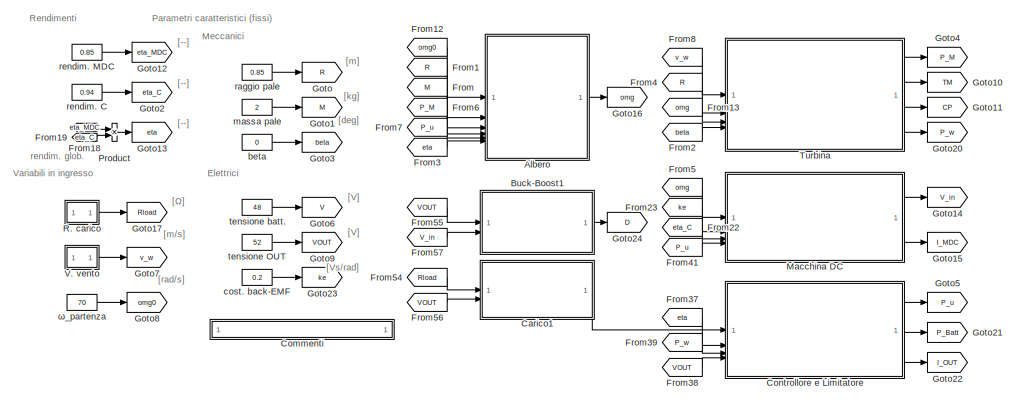
[diagram: root canvas - part 1/2, full width, top band]
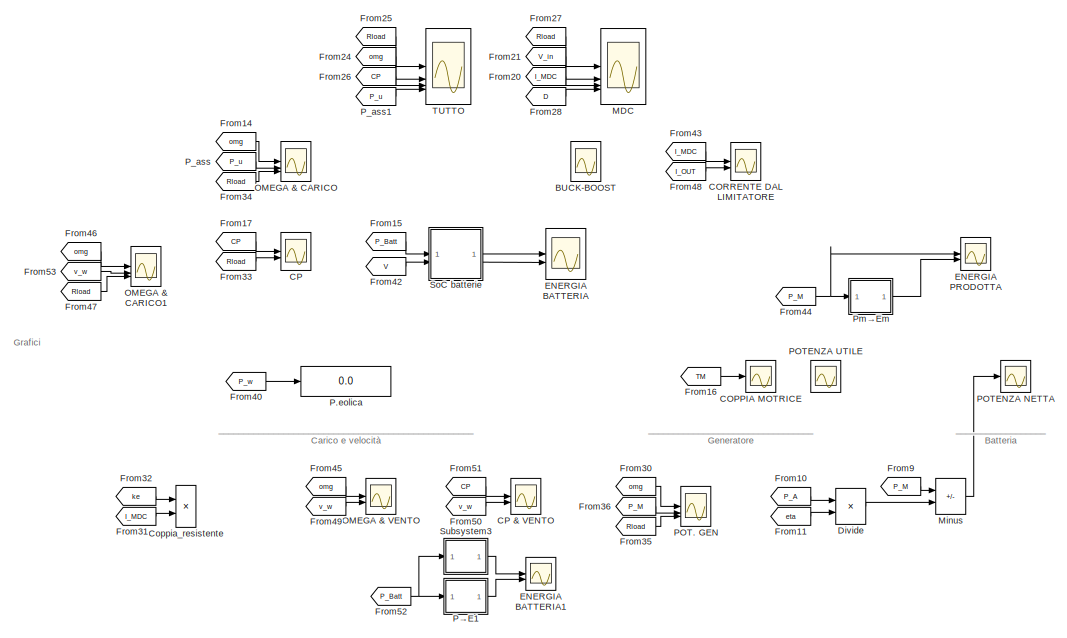
[diagram: root canvas - part 2/2, full width, bottom band]
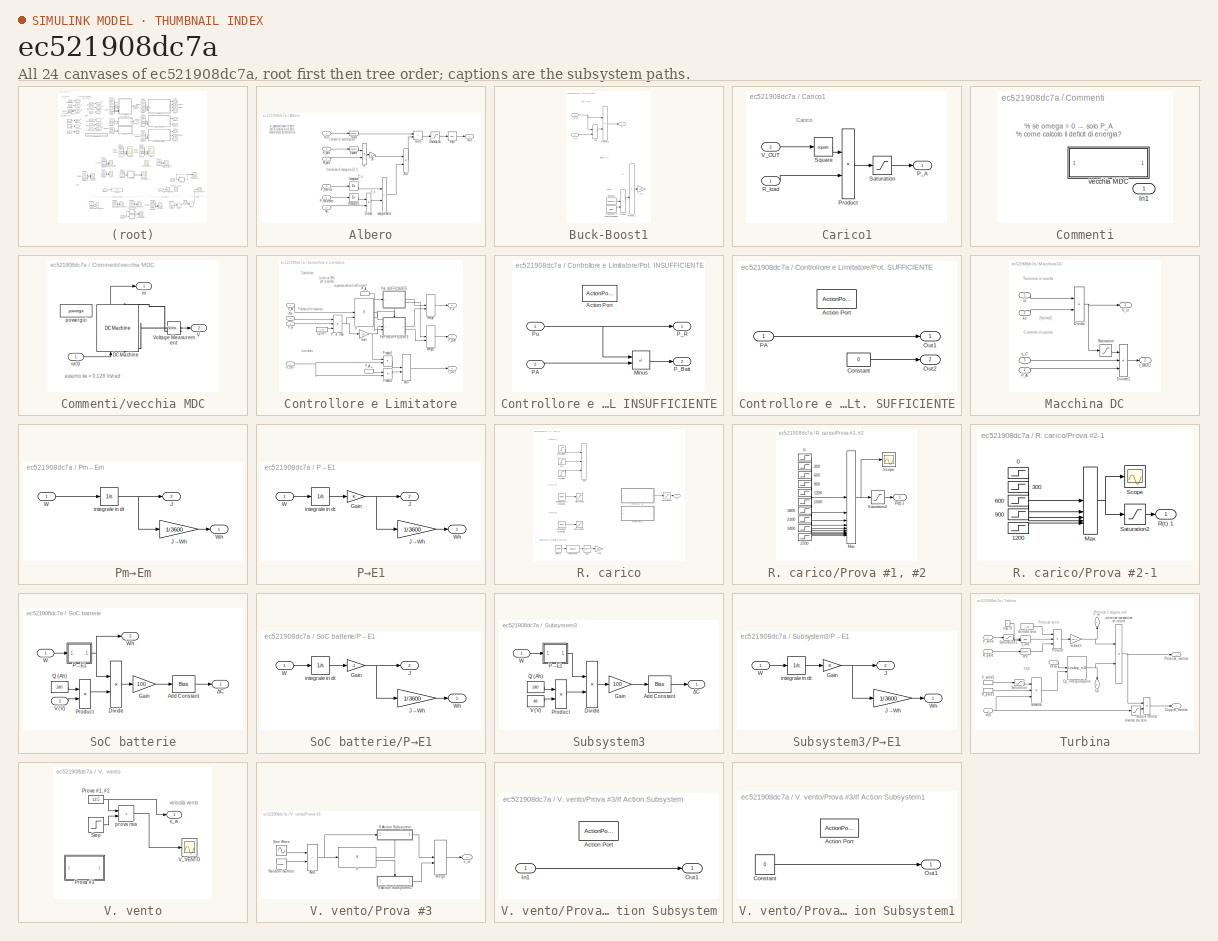
[diagram: thumbnail index - all 24 canvases of the model, root first then tree order]
MODEL slx_ec521908dc7a
KIND model
CONFIG AbsTol = auto
CONFIG EnableMultiTasking = off
CONFIG FixedStep = auto
CONFIG MaxStep = auto
CONFIG MinStep = auto
CONFIG RelTol = 1e-3
CONFIG SampleTimeConstraint = Unconstrained
CONFIG SolverName = VariableStepAuto
CONFIG StartTime = 0.0
CONFIG StopTime = 3000
BLOCK [SubSystem] Albero
  NameLocation = top
BLOCK [Gain] Albero/2K
  Gain = 2
BLOCK [Product] Albero/Divide
  Inputs = */
BLOCK [Integrator] Albero/Integrator
BLOCK [Integrator] Albero/Integrator1
BLOCK [Product] Albero/K
  Inputs = //
  NameLocation = left
BLOCK [Inport] Albero/M_pale
  Port = 3
  Unit = kg
BLOCK [Inport] Albero/P_motrice
  Port = 4
  Unit = W
BLOCK [Inport] Albero/P_resistente
  Port = 5
  Unit = W
BLOCK [Inport] Albero/R_pale
  Port = 2
  Unit = m
BLOCK [Saturate] Albero/Saturation
  LowerLimit = 0
  UpperLimit = 10e6
BLOCK [Sqrt] Albero/Sqrt
BLOCK [Math] Albero/Square
  Operator = square
BLOCK [Sum] Albero/energia netta
  IconShape = rectangular
  Inputs = +-
BLOCK [Product] Albero/Δω²
BLOCK [Inport] Albero/ηG
  Port = 6
  Unit = 1
BLOCK [Outport] Albero/ω(t)
  Unit = rad/s
BLOCK [Inport] Albero/ω_0
  Unit = rad/s
BLOCK [Math] Albero/ω²(0)
  NameLocation = top
  Operator = square
BLOCK [Sum] Albero/ω²(t)
  IconShape = rectangular
BLOCK [Scope] BUCK-BOOST
  Floating = off
  NumInputPorts = 2
  ScopeSpecificationString = Simulink.scopes.TimeScopeBlockCfg('CurrentConfiguration', extmgr.ConfigurationSet(extmgr.Configuration('Core','General UI',true,'FigureColor',[1 1 1]),extmgr.Configuration('Core','Source UI',true),extmgr.Configuration('Sources','WiredSimulink',true,'DataLoggingVariableName','ScopeData3'),extmgr.Configuration('Visuals','Time Domain',true,'SerializedDisplays',{struct('MinYLimReal','0.35','MaxYLimRea...<+2573ch>
BLOCK [SubSystem] Buck-Boost1
  NameLocation = top
BLOCK [Sum] Buck-Boost1/Add
  IconShape = rectangular
BLOCK [Constant] Buck-Boost1/Capacità
  NameLocation = left
  Value = 8*10e-6
BLOCK [Outport] Buck-Boost1/D
  NameLocation = right
  Unit = 1
BLOCK [Constant] Buck-Boost1/Frequenza di commutazione
  NameLocation = left
  Value = 10e5
BLOCK [Product] Buck-Boost1/Product
  Commented = on
  Inputs = 3
BLOCK [Product] Buck-Boost1/Product1
  Commented = on
  Inputs = */
BLOCK [Product] Buck-Boost1/Product2
  Inputs = */
BLOCK [Inport] Buck-Boost1/V_IN
  NameLocation = left
  Port = 2
  Unit = V
BLOCK [Inport] Buck-Boost1/V_OUT
  NameLocation = left
  Unit = V
BLOCK [Gain] Buck-Boost1/in_%
  Commented = on
  Gain = 100
BLOCK [Scope] COPPIA MOTRICE
  Commented = on
  Floating = off
  NumInputPorts = 1
  ScopeSpecificationString = Simulink.scopes.TimeScopeBlockCfg('CurrentConfiguration', extmgr.ConfigurationSet(extmgr.Configuration('Core','General UI',true,'FigureColor',[1 1 1]),extmgr.Configuration('Core','Source UI',true),extmgr.Configuration('Sources','WiredSimulink',true,'DataLoggingVariableName','ScopeData3'),extmgr.Configuration('Visuals','Time Domain',true,'SerializedDisplays',{struct('MinYLimReal','-1.22036','MaxYLi...<+1816ch>
BLOCK [Scope] CORRENTE DAL LIMITATORE
  Floating = off
  NumInputPorts = 2
  ScopeSpecificationString = Simulink.scopes.TimeScopeBlockCfg('CurrentConfiguration', extmgr.ConfigurationSet(extmgr.Configuration('Core','General UI',true,'FigureColor',[1 1 1]),extmgr.Configuration('Core','Source UI',true),extmgr.Configuration('Sources','WiredSimulink',true,'DataLoggingVariableName','ScopeData1'),extmgr.Configuration('Visuals','Time Domain',true,'SerializedDisplays',{struct('MinYLimReal','0','MaxYLimReal',...<+4124ch>
BLOCK [Scope] CP
  Floating = off
  NumInputPorts = 2
  ScopeSpecificationString = Simulink.scopes.TimeScopeBlockCfg('CurrentConfiguration', extmgr.ConfigurationSet(extmgr.Configuration('Core','General UI',true,'FigureColor',[1 1 1]),extmgr.Configuration('Core','Source UI',true),extmgr.Configuration('Sources','WiredSimulink',true,'DataLoggingVariableName','ScopeData1'),extmgr.Configuration('Visuals','Time Domain',true,'TimeAxisLabels','All','SerializedDisplays',{struct('MinYLimR...<+2416ch>
BLOCK [Scope] CP & VENTO
  Floating = off
  NumInputPorts = 2
  ScopeSpecificationString = Simulink.scopes.TimeScopeBlockCfg('CurrentConfiguration', extmgr.ConfigurationSet(extmgr.Configuration('Core','General UI',true,'FigureColor',[1 1 1]),extmgr.Configuration('Core','Source UI',true),extmgr.Configuration('Sources','WiredSimulink',true,'DataLoggingVariableName','ScopeData4'),extmgr.Configuration('Visuals','Time Domain',true,'TimeAxisLabels','All','SerializedDisplays',{struct('MinYLimR...<+2351ch>
BLOCK [SubSystem] Carico1
BLOCK [Outport] Carico1/P_A
  NameLocation = right
  Unit = W
BLOCK [Product] Carico1/Product
  Inputs = */
BLOCK [Inport] Carico1/R_load
  NameLocation = left
  Unit = Ω
BLOCK [Saturate] Carico1/Saturation
  LowerLimit = 0.1
  UpperLimit = 10e6
BLOCK [Math] Carico1/Square
  Operator = square
BLOCK [Inport] Carico1/V_OUT
  NameLocation = left
  Port = 2
  Unit = V
BLOCK [SubSystem] Commenti
  PortSchema = {"entries":[{"content":{"sides":[{"content":{},"type":"ConnectorPlacement.EquallySpacedRectSide","uuid":"3b05cc76-4a60-484a-afaf-f6205dfe48c2"},{"content":{"connectorIds":["In1"],"side":"RIGHT"},"type":"ConnectorPlacement.EquallySpacedRectSide","uuid":"79372650-1144-4712-8b87-4c94ae1f72cb"},{"content":{"side":"TOP"},"type":"ConnectorPlacement.EquallySpacedRectSide","uuid":"9da3426b-e973-4751-81ca-...<+325ch>
BLOCK [Inport] Commenti/In1
BLOCK [SubSystem] Commenti/vecchia MDC
  Commented = on
BLOCK [Reference] Commenti/vecchia MDC/DC Machine  REF=spsDCMachineLib/DC Machine
  LibrarySourceBlock = sps_lib/Electrical Machines/DC Machine
  NameLocation = left
  SourceBlock = spsDCMachineLib/DC Machine
  SourceType = DC machine
BLOCK [Outport] Commenti/vecchia MDC/V
  Port = 2
  Unit = V
BLOCK [Reference] Commenti/vecchia MDC/Voltage Measurement  REF=spsVoltageMeasurementLib/Voltage Measurement
  LibrarySourceBlock = sps_lib/Sensors and Measurements/Voltage Measurement
  SourceBlock = spsVoltageMeasurementLib/Voltage Measurement
  SourceType = Voltage Measurement
  UserDataPersistent = on
BLOCK [Outport] Commenti/vecchia MDC/m
BLOCK [Reference] Commenti/vecchia MDC/powergui  REF=sps_lib/powergui
  LibrarySourceBlock = sps_lib/powergui
  Priority = 1
  SourceBlock = sps_lib/powergui
  SourceType = PSB option menu block
BLOCK [Inport] Commenti/vecchia MDC/ω(t)
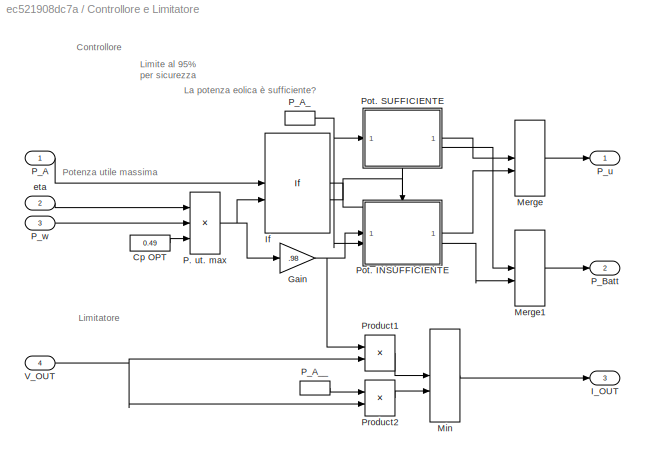
BLOCK [SubSystem] Controllore e Limitatore
BLOCK [Constant] Controllore e Limitatore/Cp OPT
  Value = 0.49
BLOCK [Gain] Controllore e Limitatore/Gain
  Gain = .98
BLOCK [Outport] Controllore e Limitatore/I_OUT
  NameLocation = right
  Port = 3
  Unit = A
BLOCK [If] Controllore e Limitatore/If
  IfExpression = u1<u2
  NumInputs = 2
BLOCK [Merge] Controllore e Limitatore/Merge
BLOCK [Merge] Controllore e Limitatore/Merge1
BLOCK [MinMax] Controllore e Limitatore/Min
  Inputs = 2
BLOCK [Product] Controllore e Limitatore/P. ut. max
  Inputs = 3
BLOCK [Inport] Controllore e Limitatore/P_A
  NameLocation = left
BLOCK [InportShadow] Controllore e Limitatore/P_A_
  NameLocation = left
BLOCK [InportShadow] Controllore e Limitatore/P_A__
  NameLocation = left
BLOCK [Outport] Controllore e Limitatore/P_Batt
  NameLocation = right
  Port = 2
  Unit = W
BLOCK [Outport] Controllore e Limitatore/P_u
  NameLocation = right
BLOCK [Inport] Controllore e Limitatore/P_w
  NameLocation = left
  Port = 3
BLOCK [SubSystem] Controllore e Limitatore/Pot. INSUFFICIENTE
  TreatAsAtomicUnit = on
BLOCK [ActionPort] Controllore e Limitatore/Pot. INSUFFICIENTE/Action Port
  ActionPortLabel = else
BLOCK [Sum] Controllore e Limitatore/Pot. INSUFFICIENTE/Minus
  IconShape = rectangular
  Inputs = -+
BLOCK [Inport] Controllore e Limitatore/Pot. INSUFFICIENTE/PA
  Port = 2
BLOCK [Outport] Controllore e Limitatore/Pot. INSUFFICIENTE/P_Batt
  Port = 2
  Unit = W
BLOCK [Outport] Controllore e Limitatore/Pot. INSUFFICIENTE/P_R
BLOCK [Inport] Controllore e Limitatore/Pot. INSUFFICIENTE/Pu
BLOCK [SubSystem] Controllore e Limitatore/Pot. SUFFICIENTE
  NameLocation = top
  TreatAsAtomicUnit = on
BLOCK [ActionPort] Controllore e Limitatore/Pot. SUFFICIENTE/Action Port
  ActionPortLabel = if(u1<u2)
BLOCK [Constant] Controllore e Limitatore/Pot. SUFFICIENTE/Constant
  Value = 0
BLOCK [Outport] Controllore e Limitatore/Pot. SUFFICIENTE/Out1
BLOCK [Outport] Controllore e Limitatore/Pot. SUFFICIENTE/Out2
  Port = 2
  Unit = W
BLOCK [Inport] Controllore e Limitatore/Pot. SUFFICIENTE/PA
BLOCK [Product] Controllore e Limitatore/Product1
  Inputs = */
  NameLocation = top
BLOCK [Product] Controllore e Limitatore/Product2
  Inputs = */
  NameLocation = top
BLOCK [Inport] Controllore e Limitatore/V_OUT
  NameLocation = left
  Port = 4
BLOCK [Inport] Controllore e Limitatore/eta
  NameLocation = left
  Port = 2
BLOCK [Product] Coppia_resistente
  Commented = on
BLOCK [Product] Divide
  Commented = on
  Inputs = */
BLOCK [Scope] ENERGIA BATTERIA
  Floating = off
  NumInputPorts = 2
  ScopeSpecificationString = Simulink.scopes.TimeScopeBlockCfg('CurrentConfiguration', extmgr.ConfigurationSet(extmgr.Configuration('Core','General UI',true,'FigureColor',[1 1 1]),extmgr.Configuration('Core','Source UI',true),extmgr.Configuration('Sources','WiredSimulink',true,'DataLoggingVariableName','ScopeData4'),extmgr.Configuration('Visuals','Time Domain',true,'SerializedDisplays',{struct('MinYLimReal','97.74906','MaxYLi...<+4142ch>
BLOCK [Scope] ENERGIA BATTERIA1
  Floating = off
  NumInputPorts = 2
  ScopeSpecificationString = Simulink.scopes.TimeScopeBlockCfg('CurrentConfiguration', extmgr.ConfigurationSet(extmgr.Configuration('Core','General UI',true,'FigureColor',[1 1 1]),extmgr.Configuration('Core','Source UI',true),extmgr.Configuration('Sources','WiredSimulink',true,'DataLoggingVariableName','ScopeData5'),extmgr.Configuration('Visuals','Time Domain',true,'SerializedDisplays',{struct('MinYLimReal','48','MaxYLimReal'...<+2360ch>
BLOCK [Scope] ENERGIA PRODOTTA
  Floating = off
  NumInputPorts = 2
  ScopeSpecificationString = Simulink.scopes.TimeScopeBlockCfg('CurrentConfiguration', extmgr.ConfigurationSet(extmgr.Configuration('Core','General UI',true,'FigureColor',[1 1 1]),extmgr.Configuration('Core','Source UI',true),extmgr.Configuration('Sources','WiredSimulink',true,'DataLoggingVariableName','ScopeData2'),extmgr.Configuration('Visuals','Time Domain',true,'SerializedDisplays',{struct('MinYLimReal','-50','MaxYLimReal...<+1907ch>
BLOCK [From] From
  GotoTag = M
BLOCK [From] From1
  GotoTag = R
BLOCK [From] From10
  Commented = on
  GotoTag = P_A
BLOCK [From] From11
  Commented = on
  GotoTag = eta
BLOCK [From] From12
  GotoTag = omg0
BLOCK [From] From13
  GotoTag = omg
BLOCK [From] From14
  GotoTag = omg
  NameLocation = left
BLOCK [From] From15
  GotoTag = P_Batt
BLOCK [From] From16
  Commented = on
  GotoTag = TM
BLOCK [From] From17
  GotoTag = CP
BLOCK [From] From18
  GotoTag = eta_MDC
BLOCK [From] From19
  GotoTag = eta_C
BLOCK [From] From2
  GotoTag = beta
BLOCK [From] From20
  GotoTag = I_MDC
  NameLocation = left
BLOCK [From] From21
  GotoTag = V_in
BLOCK [From] From22
  GotoTag = eta_C
BLOCK [From] From23
  GotoTag = ke
BLOCK [From] From24
  GotoTag = omg
  NameLocation = left
BLOCK [From] From25
  GotoTag = Rload
BLOCK [From] From26
  GotoTag = CP
BLOCK [From] From27
  GotoTag = Rload
BLOCK [From] From28
  GotoTag = D
BLOCK [From] From3
  GotoTag = eta
BLOCK [From] From30
  Commented = on
  GotoTag = omg
  NameLocation = left
BLOCK [From] From31
  Commented = on
  GotoTag = I_MDC
BLOCK [From] From32
  Commented = on
  GotoTag = ke
BLOCK [From] From33
  GotoTag = Rload
BLOCK [From] From34
  GotoTag = Rload
BLOCK [From] From35
  Commented = on
  GotoTag = Rload
BLOCK [From] From36
  Commented = on
  GotoTag = P_M
BLOCK [From] From37
  GotoTag = eta
BLOCK [From] From38
  GotoTag = VOUT
BLOCK [From] From39
  GotoTag = P_w
BLOCK [From] From4
  GotoTag = R
BLOCK [From] From40
  Commented = on
  GotoTag = P_w
BLOCK [From] From41
  GotoTag = P_u
BLOCK [From] From42
  GotoTag = V
BLOCK [From] From43
  GotoTag = I_MDC
  NameLocation = left
BLOCK [From] From44
  GotoTag = P_M
BLOCK [From] From45
  GotoTag = omg
  NameLocation = left
BLOCK [From] From46
  GotoTag = omg
  NameLocation = left
BLOCK [From] From47
  GotoTag = Rload
BLOCK [From] From48
  GotoTag = I_OUT
BLOCK [From] From49
  GotoTag = v_w
BLOCK [From] From5
  GotoTag = omg
BLOCK [From] From50
  GotoTag = v_w
BLOCK [From] From51
  GotoTag = CP
BLOCK [From] From52
  GotoTag = P_Batt
BLOCK [From] From53
  GotoTag = v_w
BLOCK [From] From54
  GotoTag = Rload
BLOCK [From] From55
  GotoTag = VOUT
BLOCK [From] From56
  GotoTag = VOUT
BLOCK [From] From57
  GotoTag = V_in
BLOCK [From] From6
  GotoTag = P_M
BLOCK [From] From7
  GotoTag = P_u
BLOCK [From] From8
  GotoTag = v_w
BLOCK [From] From9
  Commented = on
  GotoTag = P_M
BLOCK [Goto] Goto
  GotoTag = R
BLOCK [Goto] Goto1
  GotoTag = M
BLOCK [Goto] Goto10
  GotoTag = TM
BLOCK [Goto] Goto11
  GotoTag = CP
BLOCK [Goto] Goto12
  GotoTag = eta_MDC
BLOCK [Goto] Goto13
  GotoTag = eta
BLOCK [Goto] Goto14
  GotoTag = V_in
BLOCK [Goto] Goto15
  GotoTag = I_MDC
BLOCK [Goto] Goto16
  GotoTag = omg
BLOCK [Goto] Goto17
  GotoTag = Rload
BLOCK [Goto] Goto2
  GotoTag = eta_C
BLOCK [Goto] Goto20
  GotoTag = P_w
BLOCK [Goto] Goto21
  GotoTag = P_Batt
BLOCK [Goto] Goto22
  GotoTag = I_OUT
BLOCK [Goto] Goto23
  GotoTag = ke
BLOCK [Goto] Goto24
  GotoTag = D
BLOCK [Goto] Goto3
  GotoTag = beta
BLOCK [Goto] Goto4
  GotoTag = P_M
BLOCK [Goto] Goto5
  GotoTag = P_u
BLOCK [Goto] Goto6
  GotoTag = V
BLOCK [Goto] Goto7
  GotoTag = v_w
BLOCK [Goto] Goto8
  GotoTag = omg0
BLOCK [Goto] Goto9
  GotoTag = VOUT
BLOCK [Scope] MDC
  Floating = off
  NumInputPorts = 4
  ScopeSpecificationString = Simulink.scopes.TimeScopeBlockCfg('CurrentConfiguration', extmgr.ConfigurationSet(extmgr.Configuration('Core','General UI',true,'FigureColor',[1 1 1]),extmgr.Configuration('Core','Source UI',true),extmgr.Configuration('Sources','WiredSimulink',true,'DataLoggingVariableName','ScopeData1'),extmgr.Configuration('Visuals','Time Domain',true,'TimeAxisLabels','All','SerializedDisplays',{struct('MinYLimR...<+4189ch>
BLOCK [SubSystem] Macchina DC
  NameLocation = top
BLOCK [Product] Macchina DC/Divide
BLOCK [Product] Macchina DC/Divide1
  Inputs = //*
BLOCK [Outport] Macchina DC/I_MDC
  NameLocation = right
  Port = 2
  Unit = A
BLOCK [Inport] Macchina DC/P_A
  NameLocation = left
  Port = 4
  Unit = W
BLOCK [Saturate] Macchina DC/Saturation
  LowerLimit = 1
  UpperLimit = 1000
BLOCK [Outport] Macchina DC/V_in
  NameLocation = right
  Unit = V
BLOCK [Inport] Macchina DC/ke
  NameLocation = left
  Port = 2
  Unit = W
BLOCK [Inport] Macchina DC/η_C
  NameLocation = left
  Port = 3
  Unit = 1
BLOCK [Inport] Macchina DC/ω
  NameLocation = left
  Unit = rad/s
BLOCK [Sum] Minus
  Commented = on
  IconShape = rectangular
  Inputs = +-
BLOCK [Scope] OMEGA & CARICO
  Floating = off
  NumInputPorts = 3
  ScopeSpecificationString = Simulink.scopes.TimeScopeBlockCfg('CurrentConfiguration', extmgr.ConfigurationSet(extmgr.Configuration('Core','General UI',true,'FigureColor',[1 1 1]),extmgr.Configuration('Core','Source UI',true),extmgr.Configuration('Sources','WiredSimulink',true,'DataLoggingVariableName','ScopeData1'),extmgr.Configuration('Visuals','Time Domain',true,'TimeAxisLabels','All','SerializedDisplays',{struct('MinYLimR...<+3276ch>
BLOCK [Scope] OMEGA & CARICO1
  Floating = off
  NumInputPorts = 3
  ScopeSpecificationString = Simulink.scopes.TimeScopeBlockCfg('CurrentConfiguration', extmgr.ConfigurationSet(extmgr.Configuration('Core','General UI',true,'FigureColor',[1 1 1]),extmgr.Configuration('Core','Source UI',true),extmgr.Configuration('Sources','WiredSimulink',true,'DataLoggingVariableName','ScopeData1'),extmgr.Configuration('Visuals','Time Domain',true,'TimeAxisLabels','All','SerializedDisplays',{struct('MinYLimR...<+3570ch>
BLOCK [Scope] OMEGA & VENTO
  Floating = off
  NumInputPorts = 2
  ScopeSpecificationString = Simulink.scopes.TimeScopeBlockCfg('CurrentConfiguration', extmgr.ConfigurationSet(extmgr.Configuration('Core','General UI',true,'FigureColor',[1 1 1]),extmgr.Configuration('Core','Source UI',true),extmgr.Configuration('Sources','WiredSimulink',true,'DataLoggingVariableName','ScopeData1'),extmgr.Configuration('Visuals','Time Domain',true,'TimeAxisLabels','All','SerializedDisplays',{struct('MinYLimR...<+2323ch>
BLOCK [Display] P.eolica
  Commented = on
  Decimation = 1
BLOCK [Scope] POT. GEN
  Commented = on
  Floating = off
  NumInputPorts = 3
  ScopeSpecificationString = Simulink.scopes.TimeScopeBlockCfg('CurrentConfiguration', extmgr.ConfigurationSet(extmgr.Configuration('Core','General UI',true,'FigureColor',[1 1 1]),extmgr.Configuration('Core','Source UI',true),extmgr.Configuration('Sources','WiredSimulink',true,'DataLoggingVariableName','ScopeData1'),extmgr.Configuration('Visuals','Time Domain',true,'SerializedDisplays',{struct('MinYLimReal','-35.69102','MaxYL...<+3501ch>
BLOCK [Scope] POTENZA NETTA
  Commented = on
  Floating = off
  NumInputPorts = 1
  ScopeSpecificationString = Simulink.scopes.TimeScopeBlockCfg('CurrentConfiguration', extmgr.ConfigurationSet(extmgr.Configuration('Core','General UI',true,'FigureColor',[1 1 1]),extmgr.Configuration('Core','Source UI',true),extmgr.Configuration('Sources','WiredSimulink',true,'DataLoggingVariableName','ScopeData1'),extmgr.Configuration('Visuals','Time Domain',true,'SerializedDisplays',{struct('MinYLimReal','-251.2003','MaxYL...<+1878ch>
BLOCK [Scope] POTENZA UTILE
  Commented = on
  Floating = off
  NumInputPorts = 1
  ScopeSpecificationString = Simulink.scopes.TimeScopeBlockCfg('CurrentConfiguration', extmgr.ConfigurationSet(extmgr.Configuration('Core','General UI',true,'FigureColor',[1 1 1]),extmgr.Configuration('Core','Source UI',true),extmgr.Configuration('Sources','WiredSimulink',true,'DataLoggingVariableName','ScopeData2'),extmgr.Configuration('Visuals','Time Domain',true,'SerializedDisplays',{struct('MinYLimReal','-251.2003','MaxYL...<+1866ch>
BLOCK [From] P_ass
  GotoTag = P_u
  NameLocation = left
BLOCK [From] P_ass1
  GotoTag = P_u
  NameLocation = left
BLOCK [SubSystem] Pm→Em
  PortSchema = {"entries":[{"content":{"sides":[{"content":{"connectorIds":["In1"]},"type":"ConnectorPlacement.EquallySpacedRectSide","uuid":"bcdc19f3-31c9-4960-9b75-9687f3be57dc"},{"content":{"connectorIds":["Out1"],"side":"RIGHT"},"type":"ConnectorPlacement.EquallySpacedRectSide","uuid":"6f4d4c58-42a6-48b0-9f12-2aa1dcddf363"},{"content":{"connectorIds":["Out2"],"side":"TOP"},"type":"ConnectorPlacement.EquallyS...<+372ch>  <repeated x4 — deduplicated; at blocks: Pm→Em, P→E1>
BLOCK [Outport] Pm→Em/J
  Port = 2
  Unit = J
BLOCK [Gain] Pm→Em/J→Wh
  Gain = 1/3600
BLOCK [Inport] Pm→Em/W
BLOCK [Outport] Pm→Em/Wh
  Unit = W*h
BLOCK [Integrator] Pm→Em/integrale in dt
BLOCK [Product] Product
BLOCK [SubSystem] P→E1
BLOCK [Gain] P→E1/Gain
BLOCK [Outport] P→E1/J
  Port = 2
  Unit = J
BLOCK [Gain] P→E1/J→Wh
  Gain = 1/3600
BLOCK [Inport] P→E1/W
BLOCK [Outport] P→E1/Wh
  Unit = W*h
BLOCK [Integrator] P→E1/integrale in dt
BLOCK [SubSystem] R. carico
BLOCK [Sum] R. carico/Add
  Commented = on
  IconShape = rectangular
  Inputs = +++
BLOCK [Gain] R. carico/Gain
  Commented = on
  Gain = 50
BLOCK [Step] R. carico/PC
  After = 90
  Commented = on
  SampleTime = 0
  Time = 1200
BLOCK [Polyval] R. carico/Polynomial
  Coefs = [10e-4 0 0]
  Commented = on
BLOCK [Math] R. carico/Pow
  Commented = on
  Operator = reciprocal
  RndMeth = Zero
  SignedPower = on
BLOCK [SubSystem] R. carico/Prova #1, #2
  NameLocation = top
BLOCK [Step] R. carico/Prova #1, #2/0
  After = 0
  Before = 100
  NameLocation = left
  SampleTime = 0
  Time = 300
BLOCK [Step] R. carico/Prova #1, #2/1200
  After = 0
  Before = 2.8
  NameLocation = left
  SampleTime = 0
  Time = 1500
BLOCK [Step] R. carico/Prova #1, #2/1500
  After = 0
  Before = 2.6
  NameLocation = left
  SampleTime = 0
  Time = 1800
BLOCK [Step] R. carico/Prova #1, #2/1800
  After = 0
  Before = 2.4
  NameLocation = left
  SampleTime = 0
  Time = 2100
BLOCK [Step] R. carico/Prova #1, #2/2100
  After = 0
  Before = 2.2
  NameLocation = left
  SampleTime = 0
  Time = 2400
BLOCK [Step] R. carico/Prova #1, #2/2400
  After = 0
  Before = 2
  NameLocation = left
  SampleTime = 0
  Time = 2700
BLOCK [Step] R. carico/Prova #1, #2/2700
  After = 5
  NameLocation = left
  SampleTime = 0
  Time = 2700
BLOCK [Step] R. carico/Prova #1, #2/300
  After = 0
  Before = 10
  NameLocation = left
  SampleTime = 0
  Time = 600
BLOCK [Step] R. carico/Prova #1, #2/600
  After = 0
  Before = 5
  NameLocation = left
  SampleTime = 0
  Time = 900
BLOCK [Step] R. carico/Prova #1, #2/900
  After = 0
  Before = 3
  NameLocation = left
  SampleTime = 0
  Time = 1200
BLOCK [MinMax] R. carico/Prova #1, #2/Max
  Function = max
  Inputs = 10
BLOCK [Outport] R. carico/Prova #1, #2/R(t) 1
BLOCK [Saturate] R. carico/Prova #1, #2/Saturation2
  LowerLimit = 0.15
  UpperLimit = 10e6
BLOCK [Scope] R. carico/Prova #1, #2/Scope
  Floating = off
  NumInputPorts = 1
  ScopeSpecificationString = Simulink.scopes.TimeScopeBlockCfg('CurrentConfiguration', extmgr.ConfigurationSet(extmgr.Configuration('Core','General UI',true),extmgr.Configuration('Core','Source UI',true),extmgr.Configuration('Sources','WiredSimulink',true,'DataLoggingVariableName','ScopeData1'),extmgr.Configuration('Visuals','Time Domain',true,'SerializedDisplays',{struct('MinYLimReal','-12.5','MaxYLimReal','112.5','YLabelRea...<+1465ch>
BLOCK [SubSystem] R. carico/Prova #2-1
BLOCK [Step] R. carico/Prova #2-1/0
  After = 0
  Before = 100
  NameLocation = left
  SampleTime = 0
  Time = 300
BLOCK [Step] R. carico/Prova #2-1/1200
  After = 0
  Before = 2.8
  NameLocation = left
  SampleTime = 0
  Time = 1500
BLOCK [Step] R. carico/Prova #2-1/300
  After = 0
  Before = 10
  NameLocation = left
  SampleTime = 0
  Time = 600
BLOCK [Step] R. carico/Prova #2-1/600
  After = 0
  Before = 5
  NameLocation = left
  SampleTime = 0
  Time = 900
BLOCK [Step] R. carico/Prova #2-1/900
  After = 0
  Before = 3
  NameLocation = left
  SampleTime = 0
  Time = 1200
BLOCK [MinMax] R. carico/Prova #2-1/Max
  Function = max
  Inputs = 5
BLOCK [Outport] R. carico/Prova #2-1/R(t) 1
BLOCK [Saturate] R. carico/Prova #2-1/Saturation2
  LowerLimit = 1
  UpperLimit = 10e6
BLOCK [Scope] R. carico/Prova #2-1/Scope
  Floating = off
  NumInputPorts = 1
  ScopeSpecificationString = Simulink.scopes.TimeScopeBlockCfg('CurrentConfiguration', extmgr.ConfigurationSet(extmgr.Configuration('Core','General UI',true),extmgr.Configuration('Core','Source UI',true),extmgr.Configuration('Sources','WiredSimulink',true,'DataLoggingVariableName','ScopeData1'),extmgr.Configuration('Visuals','Time Domain',true,'SerializedDisplays',{struct('MinYLimReal','-12.5','MaxYLimReal','112.5','YLabelRea...<+1465ch>
BLOCK [Outport] R. carico/R
BLOCK [Reference] R. carico/Ramp  REF=simulink/Sources/Ramp
  Commented = on
  SourceBlock = simulink/Sources/Ramp
  SourceType = Ramp
BLOCK [Saturate] R. carico/Saturation
  Commented = on
  LowerLimit = 0
  UpperLimit = 1000
BLOCK [Saturate] R. carico/Saturation1
  Commented = on
  LowerLimit = 0
  UpperLimit = 200
BLOCK [Saturate] R. carico/Saturation2
  LowerLimit = 0.15
  UpperLimit = 10e6
BLOCK [Reference] R. carico/accensione graduale  REF=simulink/Sources/Ramp
  Commented = on
  SourceBlock = simulink/Sources/Ramp
  SourceType = Ramp
BLOCK [Step] R. carico/fornello
  After = 900
  Commented = on
  SampleTime = 0
  Time = 1500
BLOCK [Step] R. carico/lampadina
  After = 10
  Commented = on
  SampleTime = 0
  Time = 900
BLOCK [Reference] R. carico/spegnimento graduale  REF=simulink/Sources/Ramp
  Commented = on
  SourceBlock = simulink/Sources/Ramp
  SourceType = Ramp
BLOCK [SubSystem] SoC batterie
BLOCK [Bias] SoC batterie/Add Constant
  Bias = +100
  SaturateOnIntegerOverflow = off
BLOCK [Product] SoC batterie/Divide
  Inputs = */
BLOCK [Gain] SoC batterie/Gain
  Gain = 100
BLOCK [Product] SoC batterie/Product
BLOCK [SubSystem] SoC batterie/P→E1
BLOCK [Gain] SoC batterie/P→E1/Gain
  Gain = -1
BLOCK [Outport] SoC batterie/P→E1/J
  Port = 2
  Unit = J
BLOCK [Gain] SoC batterie/P→E1/J→Wh
  Gain = 1/3600
BLOCK [Inport] SoC batterie/P→E1/W
BLOCK [Outport] SoC batterie/P→E1/Wh
  Unit = W*h
BLOCK [Integrator] SoC batterie/P→E1/integrale in dt
BLOCK [Constant] SoC batterie/Q (Ah)
  NameLocation = left
  Value = 240
BLOCK [Inport] SoC batterie/V (V)
  NameLocation = left
  Port = 2
BLOCK [Inport] SoC batterie/W
BLOCK [Outport] SoC batterie/Wh
  Port = 2
  Unit = W*h
BLOCK [Outport] SoC batterie/ΔC
  Unit = %
BLOCK [SubSystem] Subsystem3
BLOCK [Bias] Subsystem3/Add Constant
  Bias = 50
  SaturateOnIntegerOverflow = off
BLOCK [Product] Subsystem3/Divide
  Inputs = */
BLOCK [Gain] Subsystem3/Gain
  Gain = 100
BLOCK [Product] Subsystem3/Product
BLOCK [SubSystem] Subsystem3/P→E1
BLOCK [Gain] Subsystem3/P→E1/Gain
BLOCK [Outport] Subsystem3/P→E1/J
  Port = 2
  Unit = J
BLOCK [Gain] Subsystem3/P→E1/J→Wh
  Gain = 1/3600
BLOCK [Inport] Subsystem3/P→E1/W
BLOCK [Outport] Subsystem3/P→E1/Wh
  Unit = W*h
BLOCK [Integrator] Subsystem3/P→E1/integrale in dt
BLOCK [Constant] Subsystem3/Q (Ah)
  NameLocation = left
  Value = 240
BLOCK [Constant] Subsystem3/V (V)
  NameLocation = left
  Value = 48
BLOCK [Inport] Subsystem3/W
BLOCK [Outport] Subsystem3/ΔC
  Unit = %
BLOCK [Scope] TUTTO
  Floating = off
  NumInputPorts = 4
  ScopeSpecificationString = Simulink.scopes.TimeScopeBlockCfg('CurrentConfiguration', extmgr.ConfigurationSet(extmgr.Configuration('Core','General UI',true,'FigureColor',[1 1 1]),extmgr.Configuration('Core','Source UI',true),extmgr.Configuration('Sources','WiredSimulink',true,'DataLoggingVariableName','ScopeData1'),extmgr.Configuration('Visuals','Time Domain',true,'TimeAxisLabels','All','SerializedDisplays',{struct('MinYLimR...<+4120ch>
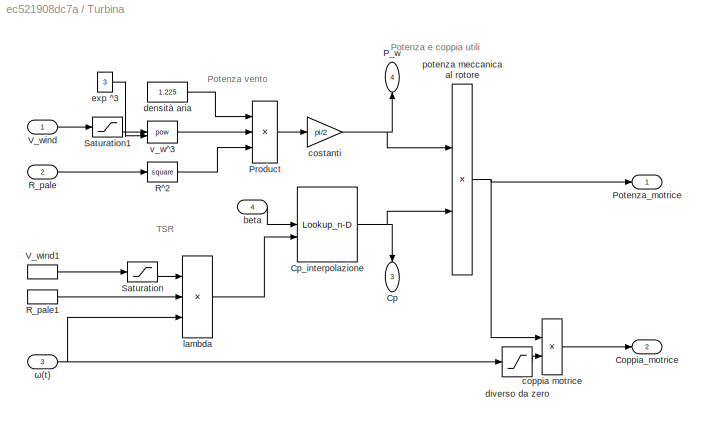
BLOCK [SubSystem] Turbina
  NameLocation = top
BLOCK [Outport] Turbina/Coppia_motrice
  Port = 2
  Unit = N*m
BLOCK [Outport] Turbina/Cp
  Port = 3
  Unit = 1
BLOCK [Lookup_n-D] Turbina/Cp_interpolazione
  BreakpointsForDimension1 = pitch
  BreakpointsForDimension2 = TSR
  InputPortMap = u0,u1
  InternalRulePriority = Speed
  InterpMethod = Cubic spline
  RndMeth = Simplest
  Table = cp
BLOCK [Outport] Turbina/P_w
  NameLocation = top
  Port = 4
  Unit = W
BLOCK [Outport] Turbina/Potenza_motrice
  Unit = W
BLOCK [Product] Turbina/Product
  Inputs = ***
BLOCK [Math] Turbina/R^2
  Operator = square
BLOCK [Inport] Turbina/R_pale
  NameLocation = left
  Port = 2
  Unit = m
BLOCK [InportShadow] Turbina/R_pale1
  NameLocation = left
  Port = 2
  Unit = m
BLOCK [Saturate] Turbina/Saturation
  LowerLimit = 1
  UpperLimit = 15
BLOCK [Saturate] Turbina/Saturation1
  LowerLimit = 1
  UpperLimit = 15
BLOCK [Inport] Turbina/V_wind
  NameLocation = left
  Unit = m/s
BLOCK [InportShadow] Turbina/V_wind1
  NameLocation = left
  Unit = m/s
BLOCK [Inport] Turbina/beta
  Port = 4
  Unit = deg
BLOCK [Product] Turbina/coppia motrice
  Inputs = */
  NameLocation = top
BLOCK [Gain] Turbina/costanti
  Gain = pi/2
BLOCK [Constant] Turbina/densità aria
  NameLocation = top
  Value = 1.225
BLOCK [Saturate] Turbina/diverso da zero
  LowerLimit = 0.1
  UpperLimit = 10e3
BLOCK [Constant] Turbina/exp ^3
  NameLocation = top
  Value = 3
BLOCK [Product] Turbina/lambda
  Inputs = /**
  NameLocation = right
BLOCK [Product] Turbina/potenza meccanica al rotore
BLOCK [Math] Turbina/v_w^3
  Operator = pow
BLOCK [Inport] Turbina/ω(t)
  NameLocation = left
  Port = 3
  Unit = rad/s
BLOCK [SubSystem] V. vento
BLOCK [SubSystem] V. vento/Prova #3
  NameLocation = left
BLOCK [Sum] V. vento/Prova #3/Add
  IconShape = rectangular
BLOCK [If] V. vento/Prova #3/If
  IfExpression = u1 > 2 & u1 <15
BLOCK [SubSystem] V. vento/Prova #3/If Action Subsystem
  NameLocation = top
  TreatAsAtomicUnit = on
BLOCK [ActionPort] V. vento/Prova #3/If Action Subsystem/Action Port
  ActionPortLabel = if(u1 > 2 & u1 <15)
BLOCK [Inport] V. vento/Prova #3/If Action Subsystem/In1
BLOCK [Outport] V. vento/Prova #3/If Action Subsystem/Out1
BLOCK [SubSystem] V. vento/Prova #3/If Action Subsystem1
  TreatAsAtomicUnit = on
BLOCK [ActionPort] V. vento/Prova #3/If Action Subsystem1/Action Port
  ActionPortLabel = else
BLOCK [Constant] V. vento/Prova #3/If Action Subsystem1/Constant
  Value = 0
BLOCK [Outport] V. vento/Prova #3/If Action Subsystem1/Out1
BLOCK [Merge] V. vento/Prova #3/Merge
BLOCK [RandomNumber] V. vento/Prova #3/Random Number
  NameLocation = left
  SampleTime = 1
  Variance = 2
BLOCK [Sin] V. vento/Prova #3/Sine Wave
  Amplitude = 5.5
  Bias = 8.5
  Frequency = 2*pi/90
  NameLocation = left
  SampleTime = 0
BLOCK [Outport] V. vento/Prova #3/v_w
BLOCK [Constant] V. vento/Prove #1, #2
  NameLocation = left
  Value = 12.5
BLOCK [Step] V. vento/Step
  After = -6
  SampleTime = 0
  Time = 2100
BLOCK [Scope] V. vento/V_VENTO
  Floating = off
  NumInputPorts = 1
  ScopeSpecificationString = Simulink.scopes.TimeScopeBlockCfg('CurrentConfiguration', extmgr.ConfigurationSet(extmgr.Configuration('Core','General UI',true,'FigureColor',[1 1 1]),extmgr.Configuration('Core','Source UI',true),extmgr.Configuration('Sources','WiredSimulink',true,'DataLoggingVariableName','ScopeData2'),extmgr.Configuration('Visuals','Time Domain',true,'SerializedDisplays',{struct('MinYLimReal','-0.25','MaxYLimRe...<+1866ch>
BLOCK [Sum] V. vento/prova mia
  IconShape = rectangular
BLOCK [Outport] V. vento/v_w
BLOCK [Constant] beta
  Value = 0
BLOCK [Constant] cost. back-EMF
  Value = 0.2
BLOCK [Constant] massa pale
  Value = 2
BLOCK [Constant] raggio pale
  Value = 0.85
BLOCK [Constant] rendim. C
  Value = 0.94
BLOCK [Constant] rendim. MDC
  Value = 0.85
BLOCK [Constant] tensione OUT
  Value = 52
BLOCK [Constant] tensione batt.
  Value = 48
BLOCK [Constant] ω_partenza
  Value = 70
ANNOTATION (root): [ Ω ]
ANNOTATION (root): [V]
ANNOTATION (root): [Vs/rad]
ANNOTATION (root): [deg]
ANNOTATION (root): [m/s]
ANNOTATION (root): [m]
ANNOTATION (root): [rad/s]
ANNOTATION (root): [--]
ANNOTATION (root): [kg]
ANNOTATION (root): __________________ Batteria
ANNOTATION (root): _________________________________ Generatore
ANNOTATION (root): ___________________________________________________ Carico e velocità
ANNOTATION (root): Elettrici
ANNOTATION (root): Grafici
ANNOTATION (root): Meccanici
ANNOTATION (root): Parametri caratteristici (fissi)
ANNOTATION (root): Rendimenti
ANNOTATION (root): Variabili in ingresso
ANNOTATION (root): rendim. glob.
ANNOTATION Albero: si approssimano le pale della turbina a tre aste incernierate all'estremità
ANNOTATION Albero: Costante di accelerazione
ANNOTATION Albero: E_a
ANNOTATION Albero: E_u
ANNOTATION Albero: Variazione di energia su [0; t]
ANNOTATION Buck-Boost1: D
ANNOTATION Buck-Boost1: Duty cycle
ANNOTATION Buck-Boost1: R_load
ANNOTATION Buck-Boost1: Ripple (%)
ANNOTATION Carico1: Carico
ANNOTATION Commenti: % se omega = 0 → solo P_A % come calcolo il deficit di energia?
ANNOTATION Commenti/vecchia MDC: assumo ke = 0.128 Vs/rad
ANNOTATION Controllore e Limitatore: Controllore
ANNOTATION Controllore e Limitatore: La potenza eolica è sufficiente?
ANNOTATION Controllore e Limitatore: Limitatore
ANNOTATION Controllore e Limitatore: Limite al 95% per sicurezza
ANNOTATION Controllore e Limitatore: Potenza utile massima
ANNOTATION Macchina DC: Corrente in uscita
ANNOTATION Macchina DC: Tensione in uscita
ANNOTATION Macchina DC: [Vs/rad]
ANNOTATION R. carico: Prova #1
ANNOTATION R. carico: Prova #2
ANNOTATION R. carico: Prova #3
ANNOTATION R. carico: Resistenza (variabile in ingresso)
ANNOTATION Turbina: Potenza e coppia utili
ANNOTATION Turbina: Potenza vento
ANNOTATION Turbina: TSR
ANNOTATION V. vento: velocità vento
LINE Albero/2K:1 -> Albero/Δω²:1
LINE Albero/Divide:1 -> Albero/energia netta:2
LINE Albero/Integrator1:1 -> Albero/Divide:1
LINE Albero/Integrator:1 -> Albero/energia netta:1
LINE Albero/K:1 -> Albero/2K:1
LINE Albero/M_pale:1 -> Albero/K:2
LINE Albero/P_motrice:1 -> Albero/Integrator:1
LINE Albero/P_resistente:1 -> Albero/Integrator1:1
LINE Albero/R_pale:1 -> Albero/Square:1
LINE Albero/Saturation:1 -> Albero/Sqrt:1
LINE Albero/Sqrt:1 -> Albero/ω(t):1
LINE Albero/Square:1 -> Albero/K:1
LINE Albero/energia netta:1 -> Albero/Δω²:2
LINE Albero/Δω²:1 -> Albero/ω²(t):2
LINE Albero/ηG:1 -> Albero/Divide:2
LINE Albero/ω_0:1 -> Albero/ω²(0):1
LINE Albero/ω²(0):1 -> Albero/ω²(t):1
LINE Albero/ω²(t):1 -> Albero/Saturation:1
LINE Albero:1 -> Goto16:1
LINE Buck-Boost1/Add:1 -> Buck-Boost1/Product2:2
LINE Buck-Boost1/Capacità:1 -> Buck-Boost1/Product:2
LINE Buck-Boost1/Frequenza di commutazione:1 -> Buck-Boost1/Product:3
LINE Buck-Boost1/Product1:1 -> Buck-Boost1/in_%:1
LINE Buck-Boost1/Product2:1 -> Buck-Boost1/D:1
LINE Buck-Boost1/Product:1 -> Buck-Boost1/Product1:2
LINE Buck-Boost1/V_IN:1 -> Buck-Boost1/Add:2
NET Buck-Boost1/V_OUT:1 -> Buck-Boost1/Add:1, Buck-Boost1/Product2:1
LINE Buck-Boost1:1 -> Goto24:1
LINE Carico1/Product:1 -> Carico1/Saturation:1
LINE Carico1/R_load:1 -> Carico1/Product:2
LINE Carico1/Saturation:1 -> Carico1/P_A:1
LINE Carico1/Square:1 -> Carico1/Product:1
LINE Carico1/V_OUT:1 -> Carico1/Square:1
LINE Carico1:1 -> Controllore e Limitatore:1
LINE Commenti/vecchia MDC/DC Machine:1 -> Commenti/vecchia MDC/m:1
LINE Commenti/vecchia MDC/Voltage Measurement:1 -> Commenti/vecchia MDC/V:1
LINE Commenti/vecchia MDC/ω(t):1 -> Commenti/vecchia MDC/DC Machine:1
LINE Controllore e Limitatore/Cp OPT:1 -> Controllore e Limitatore/P. ut. max:3
NET Controllore e Limitatore/Gain:1 -> Controllore e Limitatore/Pot. INSUFFICIENTE:1, Controllore e Limitatore/Product1:1
LINE Controllore e Limitatore/If:1 -> Controllore e Limitatore/Pot. SUFFICIENTE:ifaction
LINE Controllore e Limitatore/If:2 -> Controllore e Limitatore/Pot. INSUFFICIENTE:ifaction
LINE Controllore e Limitatore/Merge1:1 -> Controllore e Limitatore/P_Batt:1
LINE Controllore e Limitatore/Merge:1 -> Controllore e Limitatore/P_u:1
LINE Controllore e Limitatore/Min:1 -> Controllore e Limitatore/I_OUT:1
NET Controllore e Limitatore/P. ut. max:1 -> Controllore e Limitatore/Gain:1, Controllore e Limitatore/If:2
LINE Controllore e Limitatore/P_A:1 -> Controllore e Limitatore/If:1
NET Controllore e Limitatore/P_A_:1 -> Controllore e Limitatore/Pot. INSUFFICIENTE:2, Controllore e Limitatore/Pot. SUFFICIENTE:1
LINE Controllore e Limitatore/P_A__:1 -> Controllore e Limitatore/Product2:1
LINE Controllore e Limitatore/P_w:1 -> Controllore e Limitatore/P. ut. max:2
LINE Controllore e Limitatore/Pot. INSUFFICIENTE/Minus:1 -> Controllore e Limitatore/Pot. INSUFFICIENTE/P_Batt:1
LINE Controllore e Limitatore/Pot. INSUFFICIENTE/PA:1 -> Controllore e Limitatore/Pot. INSUFFICIENTE/Minus:2
NET Controllore e Limitatore/Pot. INSUFFICIENTE/Pu:1 -> Controllore e Limitatore/Pot. INSUFFICIENTE/Minus:1, Controllore e Limitatore/Pot. INSUFFICIENTE/P_R:1
LINE Controllore e Limitatore/Pot. INSUFFICIENTE:1 -> Controllore e Limitatore/Merge:2
LINE Controllore e Limitatore/Pot. INSUFFICIENTE:2 -> Controllore e Limitatore/Merge1:2
LINE Controllore e Limitatore/Pot. SUFFICIENTE/Constant:1 -> Controllore e Limitatore/Pot. SUFFICIENTE/Out2:1
LINE Controllore e Limitatore/Pot. SUFFICIENTE/PA:1 -> Controllore e Limitatore/Pot. SUFFICIENTE/Out1:1
LINE Controllore e Limitatore/Pot. SUFFICIENTE:1 -> Controllore e Limitatore/Merge:1
LINE Controllore e Limitatore/Pot. SUFFICIENTE:2 -> Controllore e Limitatore/Merge1:1
LINE Controllore e Limitatore/Product1:1 -> Controllore e Limitatore/Min:1
LINE Controllore e Limitatore/Product2:1 -> Controllore e Limitatore/Min:2
NET Controllore e Limitatore/V_OUT:1 -> Controllore e Limitatore/Product1:2, Controllore e Limitatore/Product2:2
LINE Controllore e Limitatore/eta:1 -> Controllore e Limitatore/P. ut. max:1
LINE Controllore e Limitatore:1 -> Goto5:1
LINE Controllore e Limitatore:2 -> Goto21:1
LINE Controllore e Limitatore:3 -> Goto22:1
LINE Divide:1 -> Minus:2
LINE From10:1 -> Divide:1
LINE From11:1 -> Divide:2
LINE From12:1 -> Albero:1
LINE From13:1 -> Turbina:3
LINE From14:1 -> OMEGA & CARICO:1
LINE From15:1 -> SoC batterie:1
LINE From16:1 -> COPPIA MOTRICE:1
LINE From17:1 -> CP:1
LINE From18:1 -> Product:1
LINE From19:1 -> Product:2
LINE From1:1 -> Albero:2
LINE From20:1 -> MDC:3
LINE From21:1 -> MDC:2
LINE From22:1 -> Macchina DC:3
LINE From23:1 -> Macchina DC:2
LINE From24:1 -> TUTTO:2
LINE From25:1 -> TUTTO:1
LINE From26:1 -> TUTTO:3
LINE From27:1 -> MDC:1
LINE From28:1 -> MDC:4
LINE From2:1 -> Turbina:4
LINE From30:1 -> POT. GEN:1
LINE From31:1 -> Coppia_resistente:2
LINE From32:1 -> Coppia_resistente:1
LINE From33:1 -> CP:2
LINE From34:1 -> OMEGA & CARICO:3
LINE From35:1 -> POT. GEN:3
LINE From36:1 -> POT. GEN:2
LINE From37:1 -> Controllore e Limitatore:2
LINE From38:1 -> Controllore e Limitatore:4
LINE From39:1 -> Controllore e Limitatore:3
LINE From3:1 -> Albero:6
LINE From40:1 -> P.eolica:1
LINE From41:1 -> Macchina DC:4
LINE From42:1 -> SoC batterie:2
LINE From43:1 -> CORRENTE DAL LIMITATORE:1
NET From44:1 -> ENERGIA PRODOTTA:1, Pm→Em:1
LINE From45:1 -> OMEGA & VENTO:1
LINE From46:1 -> OMEGA & CARICO1:1
LINE From47:1 -> OMEGA & CARICO1:3
LINE From48:1 -> CORRENTE DAL LIMITATORE:2
LINE From49:1 -> OMEGA & VENTO:2
LINE From4:1 -> Turbina:2
LINE From50:1 -> CP & VENTO:2
LINE From51:1 -> CP & VENTO:1
NET From52:1 -> P→E1:1, Subsystem3:1
LINE From53:1 -> OMEGA & CARICO1:2
LINE From54:1 -> Carico1:1
LINE From55:1 -> Buck-Boost1:1
LINE From56:1 -> Carico1:2
LINE From57:1 -> Buck-Boost1:2
LINE From5:1 -> Macchina DC:1
LINE From6:1 -> Albero:4
LINE From7:1 -> Albero:5
LINE From8:1 -> Turbina:1
LINE From9:1 -> Minus:1
LINE From:1 -> Albero:3
LINE Macchina DC/Divide1:1 -> Macchina DC/I_MDC:1
NET Macchina DC/Divide:1 -> Macchina DC/Saturation:1, Macchina DC/V_in:1
LINE Macchina DC/P_A:1 -> Macchina DC/Divide1:3
LINE Macchina DC/Saturation:1 -> Macchina DC/Divide1:1
LINE Macchina DC/ke:1 -> Macchina DC/Divide:2
LINE Macchina DC/η_C:1 -> Macchina DC/Divide1:2
LINE Macchina DC/ω:1 -> Macchina DC/Divide:1
LINE Macchina DC:1 -> Goto14:1
LINE Macchina DC:2 -> Goto15:1
LINE Minus:1 -> POTENZA NETTA:1
LINE P_ass1:1 -> TUTTO:4
LINE P_ass:1 -> OMEGA & CARICO:2
LINE Pm→Em/J→Wh:1 -> Pm→Em/Wh:1
LINE Pm→Em/W:1 -> Pm→Em/integrale in dt:1
NET Pm→Em/integrale in dt:1 -> Pm→Em/J:1, Pm→Em/J→Wh:1
LINE Pm→Em:1 -> ENERGIA PRODOTTA:2
LINE Product:1 -> Goto13:1
NET P→E1/Gain:1 -> P→E1/J:1, P→E1/J→Wh:1
LINE P→E1/J→Wh:1 -> P→E1/Wh:1
LINE P→E1/W:1 -> P→E1/integrale in dt:1
LINE P→E1/integrale in dt:1 -> P→E1/Gain:1
LINE P→E1:1 -> ENERGIA BATTERIA1:2
LINE R. carico/PC:1 -> R. carico/Add:2
LINE R. carico/Polynomial:1 -> R. carico/Pow:1
LINE R. carico/Pow:1 -> R. carico/Gain:1
LINE R. carico/Prova #1, #2/0:1 -> R. carico/Prova #1, #2/Max:1
LINE R. carico/Prova #1, #2/1200:1 -> R. carico/Prova #1, #2/Max:5
LINE R. carico/Prova #1, #2/1500:1 -> R. carico/Prova #1, #2/Max:6
LINE R. carico/Prova #1, #2/1800:1 -> R. carico/Prova #1, #2/Max:7
LINE R. carico/Prova #1, #2/2100:1 -> R. carico/Prova #1, #2/Max:8
LINE R. carico/Prova #1, #2/2400:1 -> R. carico/Prova #1, #2/Max:9
LINE R. carico/Prova #1, #2/2700:1 -> R. carico/Prova #1, #2/Max:10
LINE R. carico/Prova #1, #2/300:1 -> R. carico/Prova #1, #2/Max:2
LINE R. carico/Prova #1, #2/600:1 -> R. carico/Prova #1, #2/Max:3
LINE R. carico/Prova #1, #2/900:1 -> R. carico/Prova #1, #2/Max:4
NET R. carico/Prova #1, #2/Max:1 -> R. carico/Prova #1, #2/Saturation2:1, R. carico/Prova #1, #2/Scope:1
LINE R. carico/Prova #1, #2/Saturation2:1 -> R. carico/Prova #1, #2/R(t) 1:1
LINE R. carico/Prova #1, #2:1 -> R. carico/Saturation2:1
LINE R. carico/Prova #2-1/0:1 -> R. carico/Prova #2-1/Max:1
LINE R. carico/Prova #2-1/1200:1 -> R. carico/Prova #2-1/Max:5
LINE R. carico/Prova #2-1/300:1 -> R. carico/Prova #2-1/Max:2
LINE R. carico/Prova #2-1/600:1 -> R. carico/Prova #2-1/Max:3
LINE R. carico/Prova #2-1/900:1 -> R. carico/Prova #2-1/Max:4
NET R. carico/Prova #2-1/Max:1 -> R. carico/Prova #2-1/Saturation2:1, R. carico/Prova #2-1/Scope:1
LINE R. carico/Prova #2-1/Saturation2:1 -> R. carico/Prova #2-1/R(t) 1:1
LINE R. carico/Ramp:1 -> R. carico/Polynomial:1
LINE R. carico/Saturation2:1 -> R. carico/R:1
LINE R. carico/accensione graduale:1 -> R. carico/Saturation1:1
LINE R. carico/fornello:1 -> R. carico/Add:3
LINE R. carico/lampadina:1 -> R. carico/Add:1
LINE R. carico/spegnimento graduale:1 -> R. carico/Saturation:1
LINE R. carico:1 -> Goto17:1
LINE SoC batterie/Add Constant:1 -> SoC batterie/ΔC:1
LINE SoC batterie/Divide:1 -> SoC batterie/Gain:1
LINE SoC batterie/Gain:1 -> SoC batterie/Add Constant:1
LINE SoC batterie/Product:1 -> SoC batterie/Divide:2
NET SoC batterie/P→E1/Gain:1 -> SoC batterie/P→E1/J:1, SoC batterie/P→E1/J→Wh:1
LINE SoC batterie/P→E1/J→Wh:1 -> SoC batterie/P→E1/Wh:1
LINE SoC batterie/P→E1/W:1 -> SoC batterie/P→E1/integrale in dt:1
LINE SoC batterie/P→E1/integrale in dt:1 -> SoC batterie/P→E1/Gain:1
NET SoC batterie/P→E1:1 -> SoC batterie/Divide:1, SoC batterie/Wh:1
LINE SoC batterie/Q (Ah):1 -> SoC batterie/Product:1
LINE SoC batterie/V (V):1 -> SoC batterie/Product:2
LINE SoC batterie/W:1 -> SoC batterie/P→E1:1
LINE SoC batterie:1 -> ENERGIA BATTERIA:1
LINE SoC batterie:2 -> ENERGIA BATTERIA:2
LINE Subsystem3/Add Constant:1 -> Subsystem3/ΔC:1
LINE Subsystem3/Divide:1 -> Subsystem3/Gain:1
LINE Subsystem3/Gain:1 -> Subsystem3/Add Constant:1
LINE Subsystem3/Product:1 -> Subsystem3/Divide:2
NET Subsystem3/P→E1/Gain:1 -> Subsystem3/P→E1/J:1, Subsystem3/P→E1/J→Wh:1
LINE Subsystem3/P→E1/J→Wh:1 -> Subsystem3/P→E1/Wh:1
LINE Subsystem3/P→E1/W:1 -> Subsystem3/P→E1/integrale in dt:1
LINE Subsystem3/P→E1/integrale in dt:1 -> Subsystem3/P→E1/Gain:1
LINE Subsystem3/P→E1:1 -> Subsystem3/Divide:1
LINE Subsystem3/Q (Ah):1 -> Subsystem3/Product:1
LINE Subsystem3/V (V):1 -> Subsystem3/Product:2
LINE Subsystem3/W:1 -> Subsystem3/P→E1:1
LINE Subsystem3:1 -> ENERGIA BATTERIA1:1
NET Turbina/Cp_interpolazione:1 -> Turbina/Cp:1, Turbina/potenza meccanica al rotore:2
LINE Turbina/Product:1 -> Turbina/costanti:1
LINE Turbina/R^2:1 -> Turbina/Product:3
LINE Turbina/R_pale1:1 -> Turbina/lambda:2
LINE Turbina/R_pale:1 -> Turbina/R^2:1
LINE Turbina/Saturation1:1 -> Turbina/v_w^3:1
LINE Turbina/Saturation:1 -> Turbina/lambda:1
LINE Turbina/V_wind1:1 -> Turbina/Saturation:1
LINE Turbina/V_wind:1 -> Turbina/Saturation1:1
LINE Turbina/beta:1 -> Turbina/Cp_interpolazione:1
LINE Turbina/coppia motrice:1 -> Turbina/Coppia_motrice:1
NET Turbina/costanti:1 -> Turbina/P_w:1, Turbina/potenza meccanica al rotore:1
LINE Turbina/densità aria:1 -> Turbina/Product:1
LINE Turbina/diverso da zero:1 -> Turbina/coppia motrice:2
LINE Turbina/exp ^3:1 -> Turbina/v_w^3:2
LINE Turbina/lambda:1 -> Turbina/Cp_interpolazione:2
NET Turbina/potenza meccanica al rotore:1 -> Turbina/Potenza_motrice:1, Turbina/coppia motrice:1
LINE Turbina/v_w^3:1 -> Turbina/Product:2
NET Turbina/ω(t):1 -> Turbina/diverso da zero:1, Turbina/lambda:3
LINE Turbina:1 -> Goto4:1
LINE Turbina:2 -> Goto10:1
LINE Turbina:3 -> Goto11:1
LINE Turbina:4 -> Goto20:1
NET V. vento/Prova #3/Add:1 -> V. vento/Prova #3/If Action Subsystem:1, V. vento/Prova #3/If:1
LINE V. vento/Prova #3/If Action Subsystem/In1:1 -> V. vento/Prova #3/If Action Subsystem/Out1:1
LINE V. vento/Prova #3/If Action Subsystem1/Constant:1 -> V. vento/Prova #3/If Action Subsystem1/Out1:1
LINE V. vento/Prova #3/If Action Subsystem1:1 -> V. vento/Prova #3/Merge:2
LINE V. vento/Prova #3/If Action Subsystem:1 -> V. vento/Prova #3/Merge:1
LINE V. vento/Prova #3/If:1 -> V. vento/Prova #3/If Action Subsystem:ifaction
LINE V. vento/Prova #3/If:2 -> V. vento/Prova #3/If Action Subsystem1:ifaction
LINE V. vento/Prova #3/Merge:1 -> V. vento/Prova #3/v_w:1
LINE V. vento/Prova #3/Random Number:1 -> V. vento/Prova #3/Add:2
LINE V. vento/Prova #3/Sine Wave:1 -> V. vento/Prova #3/Add:1
NET V. vento/Prove #1, #2:1 -> V. vento/prova mia:1, V. vento/v_w:1
LINE V. vento/Step:1 -> V. vento/prova mia:2
LINE V. vento/prova mia:1 -> V. vento/V_VENTO:1
LINE V. vento:1 -> Goto7:1
LINE beta:1 -> Goto3:1
LINE cost. back-EMF:1 -> Goto23:1
LINE massa pale:1 -> Goto1:1
LINE raggio pale:1 -> Goto:1
LINE rendim. C:1 -> Goto2:1
LINE rendim. MDC:1 -> Goto12:1
LINE tensione OUT:1 -> Goto9:1
LINE tensione batt.:1 -> Goto6:1
LINE ω_partenza:1 -> Goto8:1
PLINE Commenti/vecchia MDC/DC Machine:LConn1 -- Commenti/vecchia MDC/Voltage Measurement:LConn1
PLINE Commenti/vecchia MDC/DC Machine:RConn1 -- Commenti/vecchia MDC/Voltage Measurement:LConn2
note: NET lines group one-source signal fan-out (src -> all destinations, sorted); 1:1 wires keep LINE
